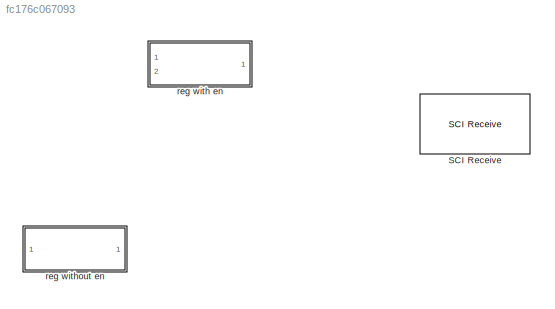
MODEL slx_fc176c067093
KIND model
CONFIG AbsTol = auto
CONFIG EnableMultiTasking = off
CONFIG FixedStep = auto
CONFIG MaxStep = auto
CONFIG MinStep = auto
CONFIG RelTol = 1e-3
CONFIG SampleTimeConstraint = Unconstrained
CONFIG Solver = FixedStepDiscrete
CONFIG SolverName = FixedStepDiscrete
CONFIG StartTime = 0.0
CONFIG StopTime = 10.0
BLOCK [Reference] SCI Receive  REF=c2000scilib/SCI Receive
  Ports = [0, 1]
  SourceBlock = c2000scilib/SCI Receive
  SourceType = c2000 Host SCI Receive
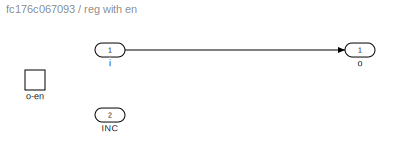
BLOCK [SubSystem] reg with en
  Ports = [2, 1, 1]
  RequestExecContextInheritance = off
  TreatAsAtomicUnit = on
  Variant = off
BLOCK [Inport] reg with en/INC
  IconDisplay = Port number
  Port = 2
BLOCK [Inport] reg with en/i
  IconDisplay = Port number
BLOCK [Outport] reg with en/o
  IconDisplay = Port number
BLOCK [EnablePort] reg with en/o-en
  Ports = []
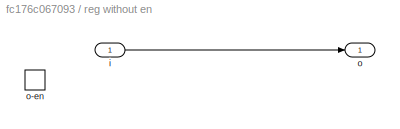
BLOCK [SubSystem] reg without en
  Ports = [1, 1, 1]
  RequestExecContextInheritance = off
  TreatAsAtomicUnit = on
  Variant = off
BLOCK [Inport] reg without en/i
  IconDisplay = Port number
BLOCK [Outport] reg without en/o
  IconDisplay = Port number
BLOCK [EnablePort] reg without en/o-en
  Ports = []
LINE reg with en/i:1 -> reg with en/o:1
LINE reg without en/i:1 -> reg without en/o:1
